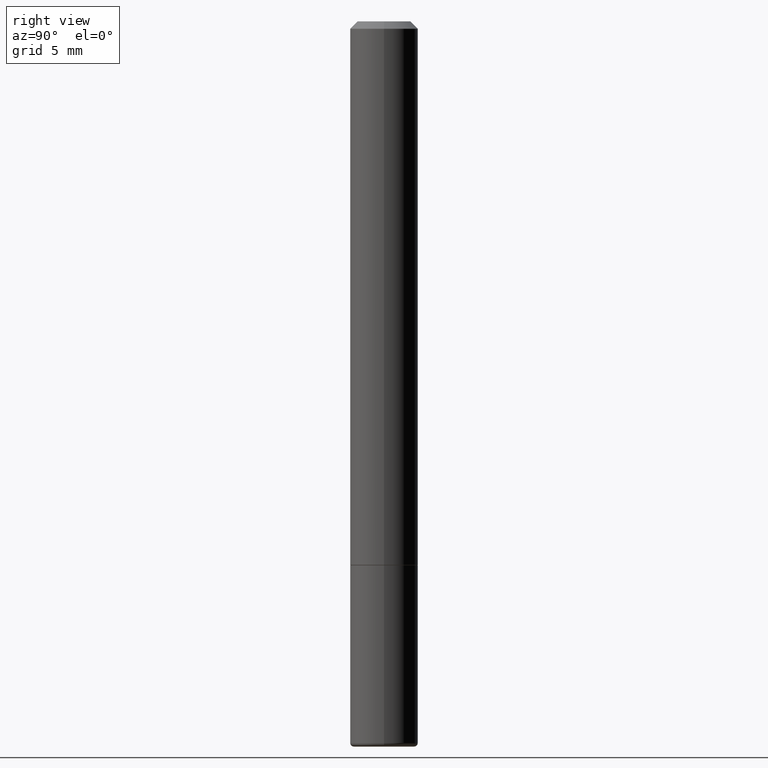
[diagram: clean part render]
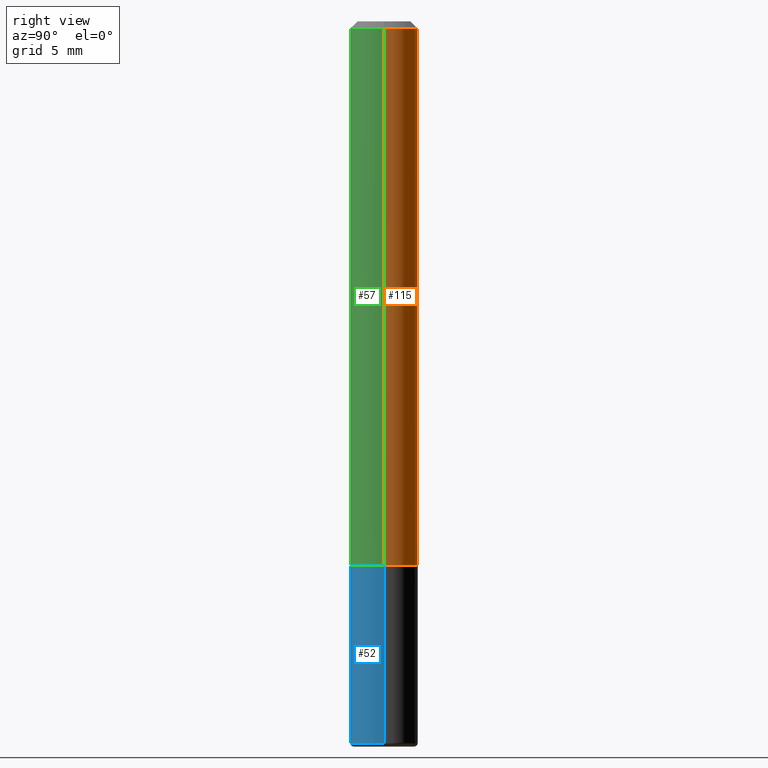
[diagram: same view with three faces highlighted in distinct colors, each labeled with its STEP entity id]
A machine part, right view with three faces highlighted in distinct colors.
Their STEP definitions:

[orange] entity #115 — the highlighted cylindrical surface (edge-blend (fillet) strip) has radius 2.3813 mm, axis along (-0, 0, 1).
#22 = LINE ( 'NONE', #276, #388 ) ;
#25 = CARTESIAN_POINT ( 'NONE',  ( 0.09375000000000001388, -7.130013140679441850E-16, -0.02000000000000001776 ) ) ;
#40 = EDGE_CURVE ( 'NONE', #131, #167, #176, .T. ) ;
#43 = AXIS2_PLACEMENT_3D ( 'NONE', #143, #145, #384 ) ;
#53 = CARTESIAN_POINT ( 'NONE',  ( 4.890937612370276662E-31, -6.982962677686296539E-17, -0.02000000000000001776 ) ) ;
#66 = VERTEX_POINT ( 'NONE', #173 ) ;
#84 = CYLINDRICAL_SURFACE ( 'NONE', #43, 0.09375000000000011102 ) ;
#90 = CIRCLE ( 'NONE', #111, 0.09375000000000001388 ) ;
#108 = FACE_OUTER_BOUND ( 'NONE', #255, .T. ) ;
#110 = CIRCLE ( 'NONE', #134, 0.09375000000000020817 ) ;
#111 = AXIS2_PLACEMENT_3D ( 'NONE', #53, #303, #360 ) ;
#115 = ADVANCED_FACE ( 'NONE', ( #108 ), #84, .T. ) ;
#121 = DIRECTION ( 'NONE',  ( -2.445468806185136877E-29, 3.491481338843145188E-15, 1.000000000000000000 ) ) ;
#131 = VERTEX_POINT ( 'NONE', #183 ) ;
#134 = AXIS2_PLACEMENT_3D ( 'NONE', #205, #338, #208 ) ;
#143 = CARTESIAN_POINT ( 'NONE',  ( 0.000000000000000000, 0.000000000000000000, 0.000000000000000000 ) ) ;
#145 = DIRECTION ( 'NONE',  ( -2.445468806185136597E-29, 3.491481338843145583E-15, 1.000000000000000000 ) ) ;
#167 = VERTEX_POINT ( 'NONE', #25 ) ;
#172 = EDGE_CURVE ( 'NONE', #282, #66, #22, .T. ) ;
#173 = CARTESIAN_POINT ( 'NONE',  ( -0.09375000000000001388, 5.848231242562245017E-16, -0.02000000000000001776 ) ) ;
#176 = LINE ( 'NONE', #298, #187 ) ;
#183 = CARTESIAN_POINT ( 'NONE',  ( 0.09375000000000020817, -5.888383277958964251E-15, -1.498999999999999666 ) ) ;
#187 = VECTOR ( 'NONE', #266, 39.37007874015748143 ) ;
#198 = EDGE_CURVE ( 'NONE', #167, #66, #90, .T. ) ;
#205 = CARTESIAN_POINT ( 'NONE',  ( 3.665757740471518732E-29, -5.233730526925875170E-15, -1.498999999999999666 ) ) ;
#208 = DIRECTION ( 'NONE',  ( 1.000000000000000000, -6.982962677686268288E-15, 0.000000000000000000 ) ) ;
#218 = ORIENTED_EDGE ( 'NONE', *, *, #40, .F. ) ;
#255 = EDGE_LOOP ( 'NONE', ( #364, #280, #321, #218 ) ) ;
#266 = DIRECTION ( 'NONE',  ( -2.445468806185136877E-29, 3.491481338843145188E-15, 1.000000000000000000 ) ) ;
#276 = CARTESIAN_POINT ( 'NONE',  ( -0.09375000000000011102, 6.661338147750947131E-16, -4.611501647113979600E-30 ) ) ;
#280 = ORIENTED_EDGE ( 'NONE', *, *, #172, .T. ) ;
#282 = VERTEX_POINT ( 'NONE', #380 ) ;
#283 = EDGE_CURVE ( 'NONE', #131, #282, #110, .T. ) ;
#298 = CARTESIAN_POINT ( 'NONE',  ( 0.09375000000000011102, -6.546527510330881944E-16, 4.571415727308695411E-30 ) ) ;
#303 = DIRECTION ( 'NONE',  ( -2.445468806185136597E-29, 3.491481338843145583E-15, 1.000000000000000000 ) ) ;
#321 = ORIENTED_EDGE ( 'NONE', *, *, #198, .F. ) ;
#338 = DIRECTION ( 'NONE',  ( -2.445468806185136597E-29, 3.491481338843145583E-15, 1.000000000000000000 ) ) ;
#360 = DIRECTION ( 'NONE',  ( 1.000000000000000000, -6.982962677686265922E-15, 0.000000000000000000 ) ) ;
#364 = ORIENTED_EDGE ( 'NONE', *, *, #283, .T. ) ;
#380 = CARTESIAN_POINT ( 'NONE',  ( -0.09375000000000020817, -1.985646262076270971E-15, -1.498999999999999666 ) ) ;
#384 = DIRECTION ( 'NONE',  ( 1.000000000000000000, -6.982962677686265922E-15, 4.876176775795935793E-29 ) ) ;
#388 = VECTOR ( 'NONE', #121, 39.37007874015748143 ) ;

[blue] entity #52 — the highlighted cylindrical surface (edge-blend (fillet) strip) has radius 2.3813 mm, axis along (-0, 0, 1).
#21 = CIRCLE ( 'NONE', #346, 0.09375000000000001388 ) ;
#23 = CARTESIAN_POINT ( 'NONE',  ( 0.09374999999999998612, -7.602700615330948598E-15, -1.989999999999999991 ) ) ;
#52 = ADVANCED_FACE ( 'NONE', ( #375 ), #76, .T. ) ;
#63 = CARTESIAN_POINT ( 'NONE',  ( -0.09375000000000001388, -5.426501121506194922E-15, -1.499999999999999778 ) ) ;
#73 = ORIENTED_EDGE ( 'NONE', *, *, #138, .T. ) ;
#76 = CYLINDRICAL_SURFACE ( 'NONE', #365, 0.09375000000000002776 ) ;
#81 = CARTESIAN_POINT ( 'NONE',  ( 0.000000000000000000, 0.000000000000000000, 0.000000000000000000 ) ) ;
#93 = EDGE_CURVE ( 'NONE', #316, #100, #199, .T. ) ;
#100 = VERTEX_POINT ( 'NONE', #137 ) ;
#113 = DIRECTION ( 'NONE',  ( -2.445468806185136597E-29, 3.491481338843145583E-15, 1.000000000000000000 ) ) ;
#114 = DIRECTION ( 'NONE',  ( 1.000000000000000000, -6.982962677686265922E-15, 4.876176775795935793E-29 ) ) ;
#137 = CARTESIAN_POINT ( 'NONE',  ( 0.09375000000000001388, -5.891874759297804892E-15, -1.499999999999999778 ) ) ;
#138 = EDGE_CURVE ( 'NONE', #310, #316, #146, .T. ) ;
#141 = CARTESIAN_POINT ( 'NONE',  ( 0.09375000000000002776, -6.546527510330876027E-16, 4.571415727308691207E-30 ) ) ;
#146 = CIRCLE ( 'NONE', #270, 0.09375000000000002776 ) ;
#161 = VECTOR ( 'NONE', #330, 39.37007874015748143 ) ;
#199 = LINE ( 'NONE', #141, #161 ) ;
#209 = CARTESIAN_POINT ( 'NONE',  ( 3.668203209277704335E-29, -5.237222008264717388E-15, -1.499999999999999778 ) ) ;
#211 = DIRECTION ( 'NONE',  ( 1.000000000000000000, -6.982962677686261189E-15, 0.000000000000000000 ) ) ;
#252 = VERTEX_POINT ( 'NONE', #63 ) ;
#265 = LINE ( 'NONE', #274, #314 ) ;
#267 = CARTESIAN_POINT ( 'NONE',  ( -0.09374999999999998612, -6.281914049522767170E-15, -1.989999999999999991 ) ) ;
#269 = DIRECTION ( 'NONE',  ( -2.445468806185136877E-29, 3.491481338843145188E-15, 1.000000000000000000 ) ) ;
#270 = AXIS2_PLACEMENT_3D ( 'NONE', #309, #345, #339 ) ;
#274 = CARTESIAN_POINT ( 'NONE',  ( -0.09375000000000002776, 6.661338147750941215E-16, -4.611501647113975397E-30 ) ) ;
#279 = EDGE_CURVE ( 'NONE', #310, #252, #265, .T. ) ;
#309 = CARTESIAN_POINT ( 'NONE',  ( 4.866482924308422209E-29, -6.948047864297860305E-15, -1.989999999999999991 ) ) ;
#310 = VERTEX_POINT ( 'NONE', #267 ) ;
#314 = VECTOR ( 'NONE', #269, 39.37007874015748143 ) ;
#316 = VERTEX_POINT ( 'NONE', #23 ) ;
#318 = EDGE_CURVE ( 'NONE', #252, #100, #21, .T. ) ;
#323 = EDGE_LOOP ( 'NONE', ( #358, #73, #387, #391 ) ) ;
#330 = DIRECTION ( 'NONE',  ( -2.445468806185136877E-29, 3.491481338843145188E-15, 1.000000000000000000 ) ) ;
#339 = DIRECTION ( 'NONE',  ( 1.000000000000000000, -6.982962677686270655E-15, 0.000000000000000000 ) ) ;
#343 = DIRECTION ( 'NONE',  ( -2.445468806185136597E-29, 3.491481338843145583E-15, 1.000000000000000000 ) ) ;
#345 = DIRECTION ( 'NONE',  ( -2.445468806185136597E-29, 3.491481338843145583E-15, 1.000000000000000000 ) ) ;
#346 = AXIS2_PLACEMENT_3D ( 'NONE', #209, #343, #211 ) ;
#358 = ORIENTED_EDGE ( 'NONE', *, *, #279, .F. ) ;
#365 = AXIS2_PLACEMENT_3D ( 'NONE', #81, #113, #114 ) ;
#375 = FACE_OUTER_BOUND ( 'NONE', #323, .T. ) ;
#387 = ORIENTED_EDGE ( 'NONE', *, *, #93, .T. ) ;
#391 = ORIENTED_EDGE ( 'NONE', *, *, #318, .F. ) ;

[green] entity #57 — the highlighted cylindrical surface (edge-blend (fillet) strip) has radius 2.3813 mm, axis along (-0, 0, 1).
#22 = LINE ( 'NONE', #276, #388 ) ;
#25 = CARTESIAN_POINT ( 'NONE',  ( 0.09375000000000001388, -7.130013140679441850E-16, -0.02000000000000001776 ) ) ;
#27 = AXIS2_PLACEMENT_3D ( 'NONE', #397, #401, #44 ) ;
#40 = EDGE_CURVE ( 'NONE', #131, #167, #176, .T. ) ;
#41 = CARTESIAN_POINT ( 'NONE',  ( 3.665757740471518732E-29, -5.233730526925875170E-15, -1.498999999999999666 ) ) ;
#44 = DIRECTION ( 'NONE',  ( 1.000000000000000000, -6.982962677686265922E-15, 4.876176775795935793E-29 ) ) ;
#57 = ADVANCED_FACE ( 'NONE', ( #396 ), #377, .T. ) ;
#66 = VERTEX_POINT ( 'NONE', #173 ) ;
#70 = CIRCLE ( 'NONE', #229, 0.09375000000000020817 ) ;
#80 = EDGE_CURVE ( 'NONE', #282, #131, #70, .T. ) ;
#121 = DIRECTION ( 'NONE',  ( -2.445468806185136877E-29, 3.491481338843145188E-15, 1.000000000000000000 ) ) ;
#130 = ORIENTED_EDGE ( 'NONE', *, *, #172, .F. ) ;
#131 = VERTEX_POINT ( 'NONE', #183 ) ;
#132 = ORIENTED_EDGE ( 'NONE', *, *, #80, .T. ) ;
#167 = VERTEX_POINT ( 'NONE', #25 ) ;
#172 = EDGE_CURVE ( 'NONE', #282, #66, #22, .T. ) ;
#173 = CARTESIAN_POINT ( 'NONE',  ( -0.09375000000000001388, 5.848231242562245017E-16, -0.02000000000000001776 ) ) ;
#175 = CIRCLE ( 'NONE', #348, 0.09375000000000001388 ) ;
#176 = LINE ( 'NONE', #298, #187 ) ;
#183 = CARTESIAN_POINT ( 'NONE',  ( 0.09375000000000020817, -5.888383277958964251E-15, -1.498999999999999666 ) ) ;
#187 = VECTOR ( 'NONE', #266, 39.37007874015748143 ) ;
#194 = DIRECTION ( 'NONE',  ( 1.000000000000000000, -6.982962677686265922E-15, 0.000000000000000000 ) ) ;
#224 = EDGE_CURVE ( 'NONE', #66, #167, #175, .T. ) ;
#229 = AXIS2_PLACEMENT_3D ( 'NONE', #41, #292, #374 ) ;
#231 = EDGE_LOOP ( 'NONE', ( #130, #132, #285, #249 ) ) ;
#249 = ORIENTED_EDGE ( 'NONE', *, *, #224, .F. ) ;
#266 = DIRECTION ( 'NONE',  ( -2.445468806185136877E-29, 3.491481338843145188E-15, 1.000000000000000000 ) ) ;
#276 = CARTESIAN_POINT ( 'NONE',  ( -0.09375000000000011102, 6.661338147750947131E-16, -4.611501647113979600E-30 ) ) ;
#282 = VERTEX_POINT ( 'NONE', #380 ) ;
#285 = ORIENTED_EDGE ( 'NONE', *, *, #40, .T. ) ;
#292 = DIRECTION ( 'NONE',  ( -2.445468806185136597E-29, 3.491481338843145583E-15, 1.000000000000000000 ) ) ;
#298 = CARTESIAN_POINT ( 'NONE',  ( 0.09375000000000011102, -6.546527510330881944E-16, 4.571415727308695411E-30 ) ) ;
#348 = AXIS2_PLACEMENT_3D ( 'NONE', #357, #392, #194 ) ;
#357 = CARTESIAN_POINT ( 'NONE',  ( 4.890937612370276662E-31, -6.982962677686296539E-17, -0.02000000000000001776 ) ) ;
#374 = DIRECTION ( 'NONE',  ( 1.000000000000000000, -6.982962677686268288E-15, 0.000000000000000000 ) ) ;
#377 = CYLINDRICAL_SURFACE ( 'NONE', #27, 0.09375000000000011102 ) ;
#380 = CARTESIAN_POINT ( 'NONE',  ( -0.09375000000000020817, -1.985646262076270971E-15, -1.498999999999999666 ) ) ;
#388 = VECTOR ( 'NONE', #121, 39.37007874015748143 ) ;
#392 = DIRECTION ( 'NONE',  ( -2.445468806185136597E-29, 3.491481338843145583E-15, 1.000000000000000000 ) ) ;
#396 = FACE_OUTER_BOUND ( 'NONE', #231, .T. ) ;
#397 = CARTESIAN_POINT ( 'NONE',  ( 0.000000000000000000, 0.000000000000000000, 0.000000000000000000 ) ) ;
#401 = DIRECTION ( 'NONE',  ( -2.445468806185136597E-29, 3.491481338843145583E-15, 1.000000000000000000 ) ) ;